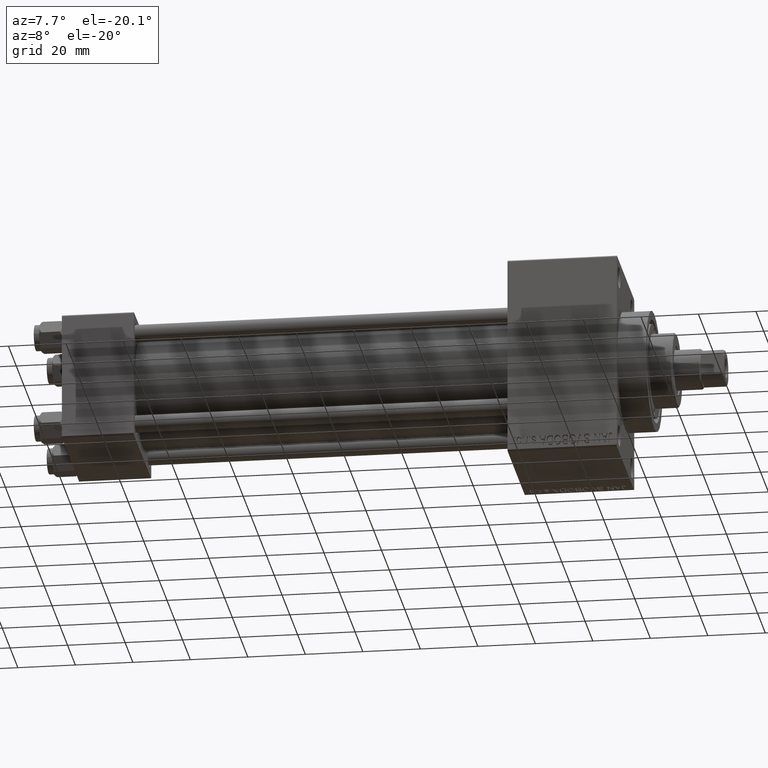
[diagram: clean part render]
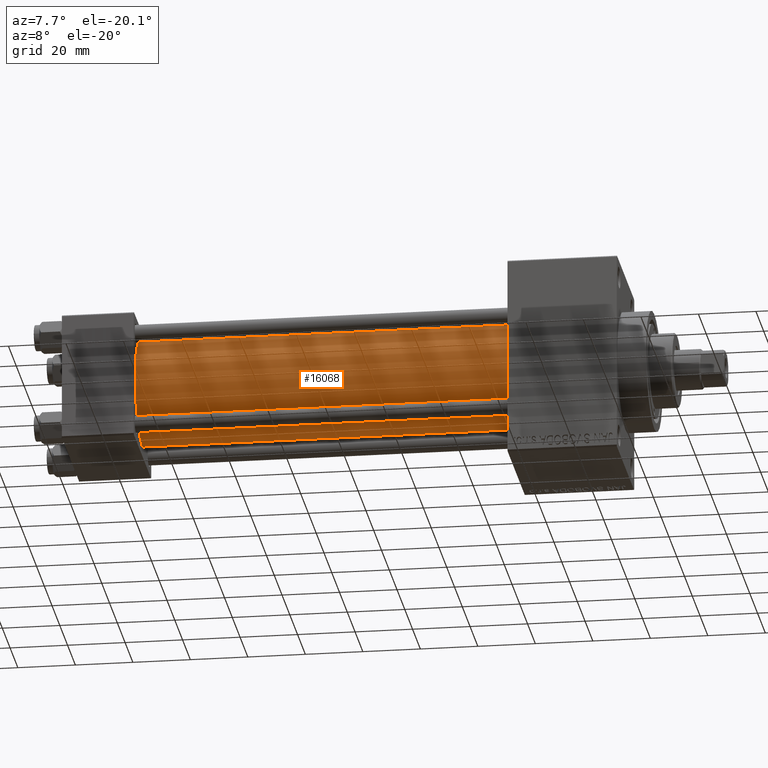
[diagram: same view with one face highlighted and labeled with its STEP entity id]
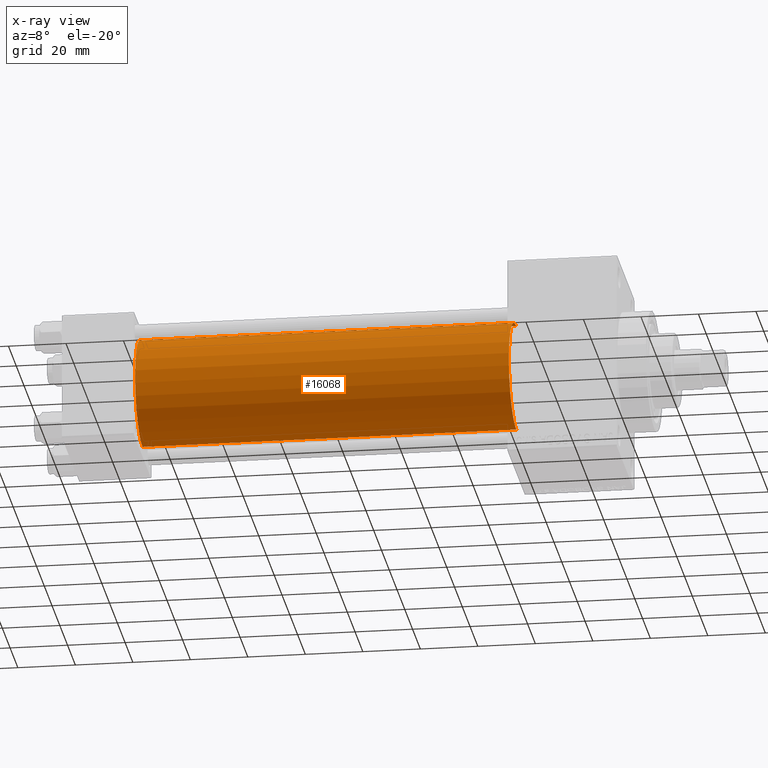
[diagram: x-ray of the same camera — body ghosted, the highlighted face saturated]
A machine part, auxiliary view. The second image highlights one B-rep face of the part: STEP entity #16068.
The next image is the same camera in x-ray: the body ghosted, the highlighted face saturated — about 0% of this face is hidden behind the body in this view.
In plain terms, the highlighted cylindrical surface (partial cylindrical patch) has radius 19 mm, axis along (-1, -0, -0).
Its self-contained STEP definition (entity closure, byte-faithful):
#2056 = ORIENTED_EDGE ( 'NONE', *, *, #10351, .T. ) ;
#2285 = CARTESIAN_POINT ( 'NONE',  ( 155.0000000000000000, -2.602085213965210642E-15, 0.000000000000000000 ) ) ;
#2665 = VERTEX_POINT ( 'NONE', #32986 ) ;
#2945 = CARTESIAN_POINT ( 'NONE',  ( 155.0000000000000000, -2.602085213965210642E-15, 19.00000000000000000 ) ) ;
#2998 = FACE_OUTER_BOUND ( 'NONE', #9000, .T. ) ;
#6024 = CARTESIAN_POINT ( 'NONE',  ( 24.99999999999999289, -2.752562955852396712E-16, -19.00000000000000000 ) ) ;
#6573 = AXIS2_PLACEMENT_3D ( 'NONE', #11285, #7200, #18725 ) ;
#6765 = DIRECTION ( 'NONE',  ( -1.000000000000000000, -0.000000000000000000, -0.000000000000000000 ) ) ;
#7200 = DIRECTION ( 'NONE',  ( 1.000000000000000000, -0.000000000000000000, 0.000000000000000000 ) ) ;
#8117 = DIRECTION ( 'NONE',  ( 0.000000000000000000, 0.000000000000000000, -1.000000000000000000 ) ) ;
#9000 = EDGE_LOOP ( 'NONE', ( #31909, #16265, #29521, #2056 ) ) ;
#9036 = LINE ( 'NONE', #34907, #45207 ) ;
#9693 = AXIS2_PLACEMENT_3D ( 'NONE', #33773, #16008, #8117 ) ;
#10176 = DIRECTION ( 'NONE',  ( 0.000000000000000000, 0.000000000000000000, 1.000000000000000000 ) ) ;
#10351 = EDGE_CURVE ( 'NONE', #2665, #13002, #24919, .T. ) ;
#11285 = CARTESIAN_POINT ( 'NONE',  ( 24.99999999999999289, -2.602085213965210642E-15, 0.000000000000000000 ) ) ;
#13002 = VERTEX_POINT ( 'NONE', #6024 ) ;
#16008 = DIRECTION ( 'NONE',  ( 1.000000000000000000, 0.000000000000000000, 0.000000000000000000 ) ) ;
#16068 = ADVANCED_FACE ( 'NONE', ( #2998 ), #17118, .T. ) ;
#16265 = ORIENTED_EDGE ( 'NONE', *, *, #43849, .F. ) ;
#16421 = EDGE_CURVE ( 'NONE', #32626, #2665, #42709, .T. ) ;
#16880 = DIRECTION ( 'NONE',  ( -1.000000000000000000, -0.000000000000000000, -0.000000000000000000 ) ) ;
#17118 = CYLINDRICAL_SURFACE ( 'NONE', #26531, 19.00000000000000000 ) ;
#18725 = DIRECTION ( 'NONE',  ( 0.000000000000000000, 0.000000000000000000, 1.000000000000000000 ) ) ;
#20172 = VERTEX_POINT ( 'NONE', #27431 ) ;
#22506 = CARTESIAN_POINT ( 'NONE',  ( 155.0000000000000000, -2.602085213965210642E-15, 19.00000000000000000 ) ) ;
#23479 = CIRCLE ( 'NONE', #9693, 19.00000000000000000 ) ;
#23636 = DIRECTION ( 'NONE',  ( -1.000000000000000000, -0.000000000000000000, -0.000000000000000000 ) ) ;
#24919 = CIRCLE ( 'NONE', #6573, 19.00000000000000000 ) ;
#26531 = AXIS2_PLACEMENT_3D ( 'NONE', #2285, #16880, #10176 ) ;
#27431 = CARTESIAN_POINT ( 'NONE',  ( 155.0000000000000000, -2.752562955852396712E-16, -19.00000000000000000 ) ) ;
#29521 = ORIENTED_EDGE ( 'NONE', *, *, #16421, .T. ) ;
#30890 = EDGE_CURVE ( 'NONE', #20172, #13002, #9036, .T. ) ;
#31909 = ORIENTED_EDGE ( 'NONE', *, *, #30890, .F. ) ;
#32626 = VERTEX_POINT ( 'NONE', #22506 ) ;
#32986 = CARTESIAN_POINT ( 'NONE',  ( 24.99999999999999289, -2.602085213965210642E-15, 19.00000000000000000 ) ) ;
#33773 = CARTESIAN_POINT ( 'NONE',  ( 155.0000000000000000, -2.602085213965210642E-15, 0.000000000000000000 ) ) ;
#34203 = VECTOR ( 'NONE', #6765, 1000.000000000000000 ) ;
#34907 = CARTESIAN_POINT ( 'NONE',  ( 155.0000000000000000, -2.752562955852396712E-16, -19.00000000000000000 ) ) ;
#42709 = LINE ( 'NONE', #2945, #34203 ) ;
#43849 = EDGE_CURVE ( 'NONE', #32626, #20172, #23479, .T. ) ;
#45207 = VECTOR ( 'NONE', #23636, 1000.000000000000000 ) ;